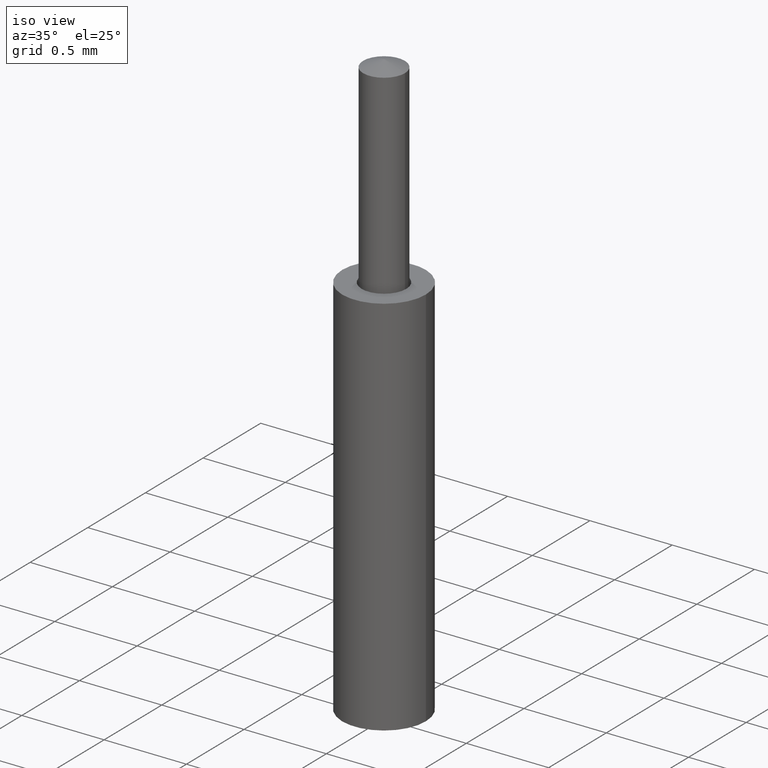
[diagram: clean part render]
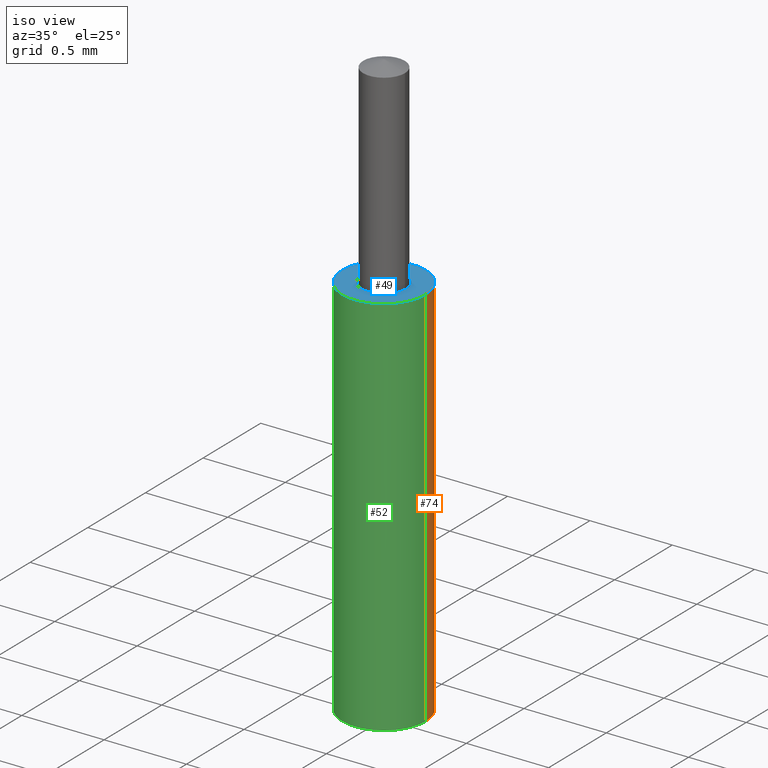
[diagram: same view with three faces highlighted in distinct colors, each labeled with its STEP entity id]
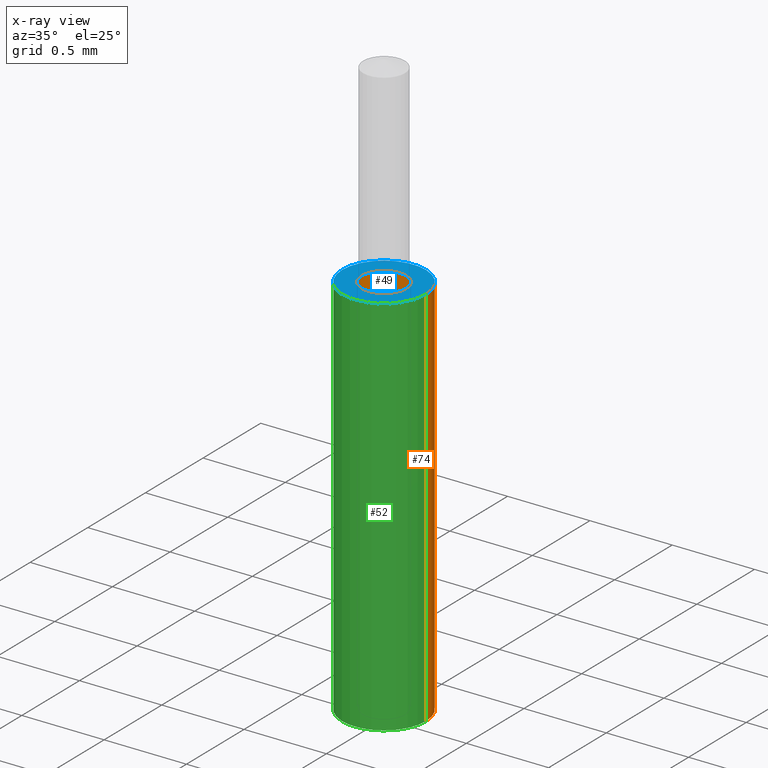
[diagram: x-ray of the same camera — body ghosted, the three highlighted faces saturated]
A machine part, iso view with three faces highlighted in distinct colors.
The next image is the same camera in x-ray (body ghosted, the three faces saturated) — at least one of them is partly hidden behind the body in this view.
Their STEP definitions:

[orange] entity #74 — the highlighted cylindrical surface (partial cylindrical patch) has radius 0.254 mm, axis along (-0, -0, -1).
#2 = EDGE_CURVE ( 'NONE', #334, #301, #308, .T. ) ;
#5 = EDGE_CURVE ( 'NONE', #324, #351, #267, .T. ) ;
#7 = EDGE_CURVE ( 'NONE', #301, #351, #314, .T. ) ;
#9 = EDGE_CURVE ( 'NONE', #334, #324, #319, .T. ) ;
#25 = AXIS2_PLACEMENT_3D ( 'NONE', #245, #234, #233 ) ;
#26 = AXIS2_PLACEMENT_3D ( 'NONE', #251, #249, #250 ) ;
#43 = AXIS2_PLACEMENT_3D ( 'NONE', #179, #181, #178 ) ;
#74 = ADVANCED_FACE ( 'NONE', ( #325 ), #134, .T. ) ;
#134 = CYLINDRICAL_SURFACE ( 'NONE', #43, 0.01000000000000000000 ) ;
#178 = DIRECTION ( 'NONE',  ( -1.000000000000000000, 0.0000000000000000000, 0.0000000000000000000 ) ) ;
#179 = CARTESIAN_POINT ( 'NONE',  ( 0.0000000000000000000, 0.0000000000000000000, 0.0000000000000000000 ) ) ;
#181 = DIRECTION ( 'NONE',  ( -0.0000000000000000000, -0.0000000000000000000, -1.000000000000000000 ) ) ;
#196 = CARTESIAN_POINT ( 'NONE',  ( -0.01000000000000000000, 0.0000000000000000000, 0.0000000000000000000 ) ) ;
#197 = CARTESIAN_POINT ( 'NONE',  ( -0.01000000000000000000, 0.0000000000000000000, 0.09224620568251602800 ) ) ;
#198 = CARTESIAN_POINT ( 'NONE',  ( 0.01000000000000000000, 1.224646799147353400E-018, 0.09224620568251602800 ) ) ;
#201 = CARTESIAN_POINT ( 'NONE',  ( 0.01000000000000000000, 1.224646799147353400E-018, 0.0000000000000000000 ) ) ;
#220 = CARTESIAN_POINT ( 'NONE',  ( 0.01000000000000000000, 1.224646799147353400E-018, 0.0000000000000000000 ) ) ;
#226 = CARTESIAN_POINT ( 'NONE',  ( -0.01000000000000000000, 0.0000000000000000000, 0.0000000000000000000 ) ) ;
#231 = DIRECTION ( 'NONE',  ( -0.0000000000000000000, -0.0000000000000000000, -1.000000000000000000 ) ) ;
#233 = DIRECTION ( 'NONE',  ( -1.000000000000000000, 0.0000000000000000000, 0.0000000000000000000 ) ) ;
#234 = DIRECTION ( 'NONE',  ( -0.0000000000000000000, -0.0000000000000000000, -1.000000000000000000 ) ) ;
#245 = CARTESIAN_POINT ( 'NONE',  ( 0.0000000000000000000, 0.0000000000000000000, 0.0000000000000000000 ) ) ;
#246 = DIRECTION ( 'NONE',  ( -0.0000000000000000000, -0.0000000000000000000, -1.000000000000000000 ) ) ;
#249 = DIRECTION ( 'NONE',  ( -0.0000000000000000000, -0.0000000000000000000, -1.000000000000000000 ) ) ;
#250 = DIRECTION ( 'NONE',  ( -1.000000000000000000, 0.0000000000000000000, 0.0000000000000000000 ) ) ;
#251 = CARTESIAN_POINT ( 'NONE',  ( 0.0000000000000000000, 0.0000000000000000000, 0.09224620568251602800 ) ) ;
#267 = LINE ( 'NONE', #220, #358 ) ;
#280 = ORIENTED_EDGE ( 'NONE', *, *, #9, .T. ) ;
#288 = ORIENTED_EDGE ( 'NONE', *, *, #5, .T. ) ;
#290 = EDGE_LOOP ( 'NONE', ( #280, #288, #306, #339 ) ) ;
#301 = VERTEX_POINT ( 'NONE', #196 ) ;
#306 = ORIENTED_EDGE ( 'NONE', *, *, #7, .F. ) ;
#308 = LINE ( 'NONE', #226, #321 ) ;
#314 = CIRCLE ( 'NONE', #25, 0.01000000000000000000 ) ;
#319 = CIRCLE ( 'NONE', #26, 0.01000000000000000000 ) ;
#321 = VECTOR ( 'NONE', #231, 39.37007874015748100 ) ;
#324 = VERTEX_POINT ( 'NONE', #198 ) ;
#325 = FACE_OUTER_BOUND ( 'NONE', #290, .T. ) ;
#334 = VERTEX_POINT ( 'NONE', #197 ) ;
#339 = ORIENTED_EDGE ( 'NONE', *, *, #2, .F. ) ;
#351 = VERTEX_POINT ( 'NONE', #201 ) ;
#358 = VECTOR ( 'NONE', #246, 39.37007874015748100 ) ;

[blue] entity #49 — the highlighted planar face has unit normal (0, 0, 1).
#1 = EDGE_CURVE ( 'NONE', #324, #334, #346, .T. ) ;
#6 = EDGE_CURVE ( 'NONE', #364, #340, #328, .T. ) ;
#9 = EDGE_CURVE ( 'NONE', #334, #324, #319, .T. ) ;
#13 = EDGE_CURVE ( 'NONE', #340, #364, #305, .T. ) ;
#21 = AXIS2_PLACEMENT_3D ( 'NONE', #227, #225, #138 ) ;
#24 = AXIS2_PLACEMENT_3D ( 'NONE', #261, #262, #169 ) ;
#26 = AXIS2_PLACEMENT_3D ( 'NONE', #251, #249, #250 ) ;
#29 = AXIS2_PLACEMENT_3D ( 'NONE', #239, #242, #241 ) ;
#36 = AXIS2_PLACEMENT_3D ( 'NONE', #140, #158, #157 ) ;
#49 = ADVANCED_FACE ( 'NONE', ( #327, #318 ), #144, .T. ) ;
#138 = DIRECTION ( 'NONE',  ( -1.000000000000000000, 0.0000000000000000000, 0.0000000000000000000 ) ) ;
#140 = CARTESIAN_POINT ( 'NONE',  ( 0.0000000000000000000, 0.005345904096558279900, 0.09224620568251602800 ) ) ;
#144 = PLANE ( 'NONE',  #36 ) ;
#157 = DIRECTION ( 'NONE',  ( 1.000000000000000000, 0.0000000000000000000, -0.0000000000000000000 ) ) ;
#158 = DIRECTION ( 'NONE',  ( 0.0000000000000000000, 0.0000000000000000000, 1.000000000000000000 ) ) ;
#169 = DIRECTION ( 'NONE',  ( -1.000000000000000000, 0.0000000000000000000, 0.0000000000000000000 ) ) ;
#197 = CARTESIAN_POINT ( 'NONE',  ( -0.01000000000000000000, 0.0000000000000000000, 0.09224620568251602800 ) ) ;
#198 = CARTESIAN_POINT ( 'NONE',  ( 0.01000000000000000000, 1.224646799147353400E-018, 0.09224620568251602800 ) ) ;
#202 = CARTESIAN_POINT ( 'NONE',  ( -0.005345904096558279900, 0.0000000000000000000, 0.09224620568251602800 ) ) ;
#204 = CARTESIAN_POINT ( 'NONE',  ( 0.005345904096558279900, 6.546844340398825000E-019, 0.09224620568251602800 ) ) ;
#225 = DIRECTION ( 'NONE',  ( -0.0000000000000000000, -0.0000000000000000000, -1.000000000000000000 ) ) ;
#227 = CARTESIAN_POINT ( 'NONE',  ( 0.0000000000000000000, 0.0000000000000000000, 0.09224620568251602800 ) ) ;
#239 = CARTESIAN_POINT ( 'NONE',  ( 0.0000000000000000000, 0.0000000000000000000, 0.09224620568251602800 ) ) ;
#241 = DIRECTION ( 'NONE',  ( -1.000000000000000000, 0.0000000000000000000, 0.0000000000000000000 ) ) ;
#242 = DIRECTION ( 'NONE',  ( -0.0000000000000000000, -0.0000000000000000000, -1.000000000000000000 ) ) ;
#249 = DIRECTION ( 'NONE',  ( -0.0000000000000000000, -0.0000000000000000000, -1.000000000000000000 ) ) ;
#250 = DIRECTION ( 'NONE',  ( -1.000000000000000000, 0.0000000000000000000, 0.0000000000000000000 ) ) ;
#251 = CARTESIAN_POINT ( 'NONE',  ( 0.0000000000000000000, 0.0000000000000000000, 0.09224620568251602800 ) ) ;
#261 = CARTESIAN_POINT ( 'NONE',  ( 0.0000000000000000000, 0.0000000000000000000, 0.09224620568251602800 ) ) ;
#262 = DIRECTION ( 'NONE',  ( -0.0000000000000000000, -0.0000000000000000000, -1.000000000000000000 ) ) ;
#269 = ORIENTED_EDGE ( 'NONE', *, *, #1, .F. ) ;
#275 = EDGE_LOOP ( 'NONE', ( #291, #336 ) ) ;
#291 = ORIENTED_EDGE ( 'NONE', *, *, #13, .T. ) ;
#305 = CIRCLE ( 'NONE', #29, 0.005345904096558279900 ) ;
#313 = EDGE_LOOP ( 'NONE', ( #316, #269 ) ) ;
#316 = ORIENTED_EDGE ( 'NONE', *, *, #9, .F. ) ;
#318 = FACE_OUTER_BOUND ( 'NONE', #313, .T. ) ;
#319 = CIRCLE ( 'NONE', #26, 0.01000000000000000000 ) ;
#324 = VERTEX_POINT ( 'NONE', #198 ) ;
#327 = FACE_BOUND ( 'NONE', #275, .T. ) ;
#328 = CIRCLE ( 'NONE', #24, 0.005345904096558279900 ) ;
#334 = VERTEX_POINT ( 'NONE', #197 ) ;
#336 = ORIENTED_EDGE ( 'NONE', *, *, #6, .T. ) ;
#340 = VERTEX_POINT ( 'NONE', #202 ) ;
#346 = CIRCLE ( 'NONE', #21, 0.01000000000000000000 ) ;
#364 = VERTEX_POINT ( 'NONE', #204 ) ;

[green] entity #52 — the highlighted cylindrical surface (partial cylindrical patch) has radius 0.254 mm, axis along (-0, -0, -1).
#1 = EDGE_CURVE ( 'NONE', #324, #334, #346, .T. ) ;
#2 = EDGE_CURVE ( 'NONE', #334, #301, #308, .T. ) ;
#5 = EDGE_CURVE ( 'NONE', #324, #351, #267, .T. ) ;
#12 = EDGE_CURVE ( 'NONE', #351, #301, #292, .T. ) ;
#21 = AXIS2_PLACEMENT_3D ( 'NONE', #227, #225, #138 ) ;
#28 = AXIS2_PLACEMENT_3D ( 'NONE', #236, #237, #238 ) ;
#39 = AXIS2_PLACEMENT_3D ( 'NONE', #168, #166, #162 ) ;
#52 = ADVANCED_FACE ( 'NONE', ( #331 ), #88, .T. ) ;
#88 = CYLINDRICAL_SURFACE ( 'NONE', #39, 0.01000000000000000000 ) ;
#138 = DIRECTION ( 'NONE',  ( -1.000000000000000000, 0.0000000000000000000, 0.0000000000000000000 ) ) ;
#162 = DIRECTION ( 'NONE',  ( -1.000000000000000000, 0.0000000000000000000, 0.0000000000000000000 ) ) ;
#166 = DIRECTION ( 'NONE',  ( -0.0000000000000000000, -0.0000000000000000000, -1.000000000000000000 ) ) ;
#168 = CARTESIAN_POINT ( 'NONE',  ( 0.0000000000000000000, 0.0000000000000000000, 0.0000000000000000000 ) ) ;
#196 = CARTESIAN_POINT ( 'NONE',  ( -0.01000000000000000000, 0.0000000000000000000, 0.0000000000000000000 ) ) ;
#197 = CARTESIAN_POINT ( 'NONE',  ( -0.01000000000000000000, 0.0000000000000000000, 0.09224620568251602800 ) ) ;
#198 = CARTESIAN_POINT ( 'NONE',  ( 0.01000000000000000000, 1.224646799147353400E-018, 0.09224620568251602800 ) ) ;
#201 = CARTESIAN_POINT ( 'NONE',  ( 0.01000000000000000000, 1.224646799147353400E-018, 0.0000000000000000000 ) ) ;
#220 = CARTESIAN_POINT ( 'NONE',  ( 0.01000000000000000000, 1.224646799147353400E-018, 0.0000000000000000000 ) ) ;
#225 = DIRECTION ( 'NONE',  ( -0.0000000000000000000, -0.0000000000000000000, -1.000000000000000000 ) ) ;
#226 = CARTESIAN_POINT ( 'NONE',  ( -0.01000000000000000000, 0.0000000000000000000, 0.0000000000000000000 ) ) ;
#227 = CARTESIAN_POINT ( 'NONE',  ( 0.0000000000000000000, 0.0000000000000000000, 0.09224620568251602800 ) ) ;
#231 = DIRECTION ( 'NONE',  ( -0.0000000000000000000, -0.0000000000000000000, -1.000000000000000000 ) ) ;
#236 = CARTESIAN_POINT ( 'NONE',  ( 0.0000000000000000000, 0.0000000000000000000, 0.0000000000000000000 ) ) ;
#237 = DIRECTION ( 'NONE',  ( -0.0000000000000000000, -0.0000000000000000000, -1.000000000000000000 ) ) ;
#238 = DIRECTION ( 'NONE',  ( -1.000000000000000000, 0.0000000000000000000, 0.0000000000000000000 ) ) ;
#246 = DIRECTION ( 'NONE',  ( -0.0000000000000000000, -0.0000000000000000000, -1.000000000000000000 ) ) ;
#265 = ORIENTED_EDGE ( 'NONE', *, *, #12, .F. ) ;
#267 = LINE ( 'NONE', #220, #358 ) ;
#274 = EDGE_LOOP ( 'NONE', ( #287, #326, #298, #265 ) ) ;
#287 = ORIENTED_EDGE ( 'NONE', *, *, #5, .F. ) ;
#292 = CIRCLE ( 'NONE', #28, 0.01000000000000000000 ) ;
#298 = ORIENTED_EDGE ( 'NONE', *, *, #2, .T. ) ;
#301 = VERTEX_POINT ( 'NONE', #196 ) ;
#308 = LINE ( 'NONE', #226, #321 ) ;
#321 = VECTOR ( 'NONE', #231, 39.37007874015748100 ) ;
#324 = VERTEX_POINT ( 'NONE', #198 ) ;
#326 = ORIENTED_EDGE ( 'NONE', *, *, #1, .T. ) ;
#331 = FACE_OUTER_BOUND ( 'NONE', #274, .T. ) ;
#334 = VERTEX_POINT ( 'NONE', #197 ) ;
#346 = CIRCLE ( 'NONE', #21, 0.01000000000000000000 ) ;
#351 = VERTEX_POINT ( 'NONE', #201 ) ;
#358 = VECTOR ( 'NONE', #246, 39.37007874015748100 ) ;